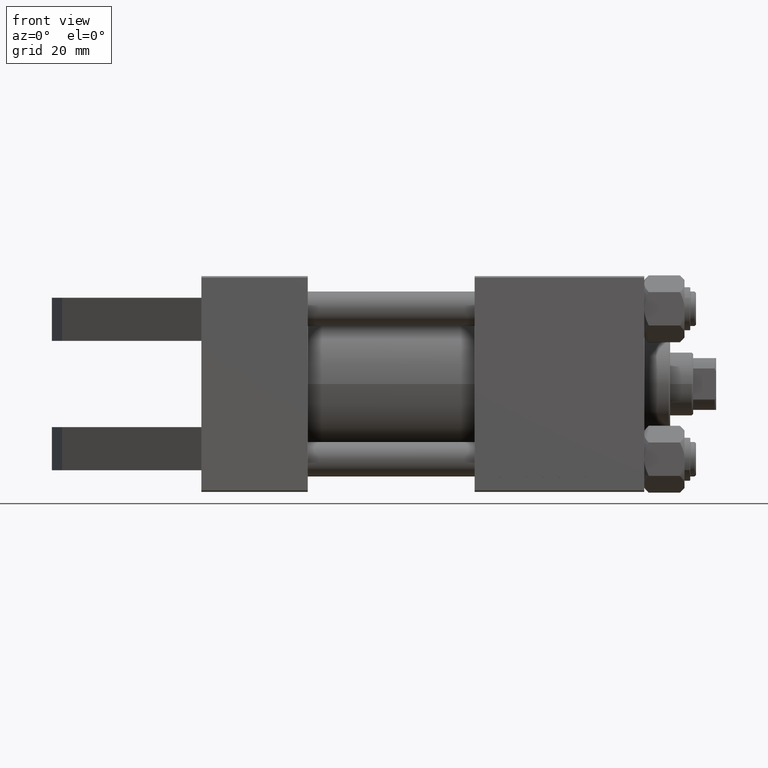
[diagram: clean part render]
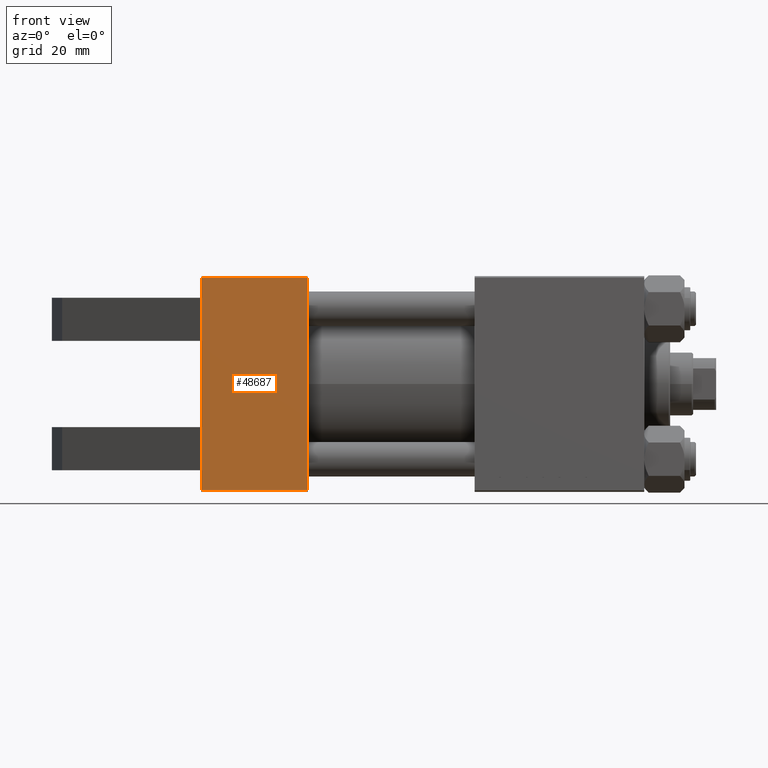
[diagram: same view with one face highlighted and labeled with its STEP entity id]
A machine part, front view. The second image highlights one B-rep face of the part: STEP entity #48687.
In plain terms, the highlighted planar face has unit normal (0, -1, -0).
Its self-contained STEP definition (entity closure, byte-faithful):
#474 = EDGE_CURVE ( 'NONE', #37576, #23047, #8010, .T. ) ;
#502 = VECTOR ( 'NONE', #8562, 1000.000000000000000 ) ;
#713 = AXIS2_PLACEMENT_3D ( 'NONE', #41045, #33251, #48584 ) ;
#899 = LINE ( 'NONE', #27791, #41674 ) ;
#1650 = ORIENTED_EDGE ( 'NONE', *, *, #43778, .T. ) ;
#3387 = VERTEX_POINT ( 'NONE', #49630 ) ;
#4445 = VECTOR ( 'NONE', #23166, 1000.000000000000000 ) ;
#5301 = CARTESIAN_POINT ( 'NONE',  ( 0.000000000000000000, 30.00000000000000000, -37.50000000000000711 ) ) ;
#5519 = CARTESIAN_POINT ( 'NONE',  ( 0.000000000000000000, -30.00000000000000000, -37.50000000000000711 ) ) ;
#6259 = VECTOR ( 'NONE', #30130, 1000.000000000000000 ) ;
#7582 = CARTESIAN_POINT ( 'NONE',  ( 0.000000000000000000, -37.00000000000002132, -37.50000000000000711 ) ) ;
#7739 = VECTOR ( 'NONE', #49052, 1000.000000000000000 ) ;
#8010 = LINE ( 'NONE', #12554, #46754 ) ;
#8562 = DIRECTION ( 'NONE',  ( -0.000000000000000000, -1.000000000000000000, -0.000000000000000000 ) ) ;
#8947 = DIRECTION ( 'NONE',  ( 0.000000000000000000, -1.000000000000000000, -9.251858538542972814E-17 ) ) ;
#10482 = VERTEX_POINT ( 'NONE', #49235 ) ;
#10515 = EDGE_CURVE ( 'NONE', #27145, #3387, #22838, .T. ) ;
#10763 = ORIENTED_EDGE ( 'NONE', *, *, #25370, .F. ) ;
#12554 = CARTESIAN_POINT ( 'NONE',  ( 37.00000000000000000, 36.99999999999997868, -37.50000000000000000 ) ) ;
#13969 = EDGE_CURVE ( 'NONE', #37576, #44594, #899, .T. ) ;
#14800 = CARTESIAN_POINT ( 'NONE',  ( 0.000000000000000000, 37.49999999999999289, -37.50000000000000000 ) ) ;
#16237 = VECTOR ( 'NONE', #44968, 1000.000000000000000 ) ;
#18411 = VERTEX_POINT ( 'NONE', #34040 ) ;
#18950 = ORIENTED_EDGE ( 'NONE', *, *, #38478, .T. ) ;
#21050 = EDGE_CURVE ( 'NONE', #23047, #10482, #37682, .T. ) ;
#22838 = LINE ( 'NONE', #37678, #6259 ) ;
#22926 = PLANE ( 'NONE',  #713 ) ;
#23047 = VERTEX_POINT ( 'NONE', #26117 ) ;
#23166 = DIRECTION ( 'NONE',  ( -1.000000000000000000, 0.000000000000000000, 0.000000000000000000 ) ) ;
#23418 = LINE ( 'NONE', #7582, #4445 ) ;
#25370 = EDGE_CURVE ( 'NONE', #35900, #18411, #33891, .T. ) ;
#26117 = CARTESIAN_POINT ( 'NONE',  ( 37.00000000000000000, 36.99999999999997868, -37.50000000000000000 ) ) ;
#27145 = VERTEX_POINT ( 'NONE', #36756 ) ;
#27791 = CARTESIAN_POINT ( 'NONE',  ( 0.000000000000000000, 37.49999999999999289, -37.50000000000000000 ) ) ;
#27852 = DIRECTION ( 'NONE',  ( 1.000000000000000000, 0.000000000000000000, 0.000000000000000000 ) ) ;
#30130 = DIRECTION ( 'NONE',  ( 0.000000000000000000, -1.000000000000000000, -9.251858538542972814E-17 ) ) ;
#33251 = DIRECTION ( 'NONE',  ( 0.000000000000000000, 9.251858538542972814E-17, -1.000000000000000000 ) ) ;
#33891 = LINE ( 'NONE', #14800, #16237 ) ;
#34040 = CARTESIAN_POINT ( 'NONE',  ( 0.000000000000000000, -37.00000000000002132, -37.50000000000000711 ) ) ;
#35900 = VERTEX_POINT ( 'NONE', #5519 ) ;
#36133 = ORIENTED_EDGE ( 'NONE', *, *, #474, .T. ) ;
#36696 = DIRECTION ( 'NONE',  ( 0.000000000000000000, -1.000000000000000000, -9.251858538542972814E-17 ) ) ;
#36756 = CARTESIAN_POINT ( 'NONE',  ( 0.000000000000000000, 15.00000000000000000, -37.50000000000000000 ) ) ;
#37183 = CARTESIAN_POINT ( 'NONE',  ( 37.00000000000000000, 37.49999999999999289, -37.50000000000000000 ) ) ;
#37265 = ORIENTED_EDGE ( 'NONE', *, *, #21050, .T. ) ;
#37576 = VERTEX_POINT ( 'NONE', #46280 ) ;
#37678 = CARTESIAN_POINT ( 'NONE',  ( 0.000000000000000000, 37.49999999999999289, -37.50000000000000000 ) ) ;
#37682 = LINE ( 'NONE', #37183, #44967 ) ;
#37740 = CARTESIAN_POINT ( 'NONE',  ( 0.000000000000000000, -30.00000000000000000, -37.50000000000000711 ) ) ;
#38478 = EDGE_CURVE ( 'NONE', #10482, #18411, #23418, .T. ) ;
#40686 = ORIENTED_EDGE ( 'NONE', *, *, #43319, .F. ) ;
#41045 = CARTESIAN_POINT ( 'NONE',  ( 37.00000000000000000, 37.49999999999999289, -37.50000000000000000 ) ) ;
#41046 = ORIENTED_EDGE ( 'NONE', *, *, #13969, .F. ) ;
#41247 = EDGE_LOOP ( 'NONE', ( #41046, #36133, #37265, #18950, #10763, #1650, #49014, #40686 ) ) ;
#41674 = VECTOR ( 'NONE', #8947, 1000.000000000000000 ) ;
#42514 = LINE ( 'NONE', #37740, #7739 ) ;
#43319 = EDGE_CURVE ( 'NONE', #44594, #27145, #46769, .T. ) ;
#43778 = EDGE_CURVE ( 'NONE', #35900, #3387, #42514, .T. ) ;
#44594 = VERTEX_POINT ( 'NONE', #46540 ) ;
#44967 = VECTOR ( 'NONE', #36696, 1000.000000000000000 ) ;
#44968 = DIRECTION ( 'NONE',  ( 0.000000000000000000, -1.000000000000000000, -9.251858538542972814E-17 ) ) ;
#45058 = FACE_OUTER_BOUND ( 'NONE', #41247, .T. ) ;
#46280 = CARTESIAN_POINT ( 'NONE',  ( 0.000000000000000000, 36.99999999999997868, -37.50000000000000000 ) ) ;
#46540 = CARTESIAN_POINT ( 'NONE',  ( 0.000000000000000000, 30.00000000000000000, -37.50000000000000711 ) ) ;
#46754 = VECTOR ( 'NONE', #27852, 1000.000000000000000 ) ;
#46769 = LINE ( 'NONE', #5301, #502 ) ;
#48584 = DIRECTION ( 'NONE',  ( 0.000000000000000000, 1.000000000000000000, 9.251858538542972814E-17 ) ) ;
#48687 = ADVANCED_FACE ( 'NONE', ( #45058 ), #22926, .T. ) ;
#49014 = ORIENTED_EDGE ( 'NONE', *, *, #10515, .F. ) ;
#49052 = DIRECTION ( 'NONE',  ( -0.000000000000000000, 1.000000000000000000, -0.000000000000000000 ) ) ;
#49235 = CARTESIAN_POINT ( 'NONE',  ( 37.00000000000000000, -37.00000000000002132, -37.50000000000000711 ) ) ;
#49630 = CARTESIAN_POINT ( 'NONE',  ( 0.000000000000000000, -15.00000000000000000, -37.50000000000000711 ) ) ;